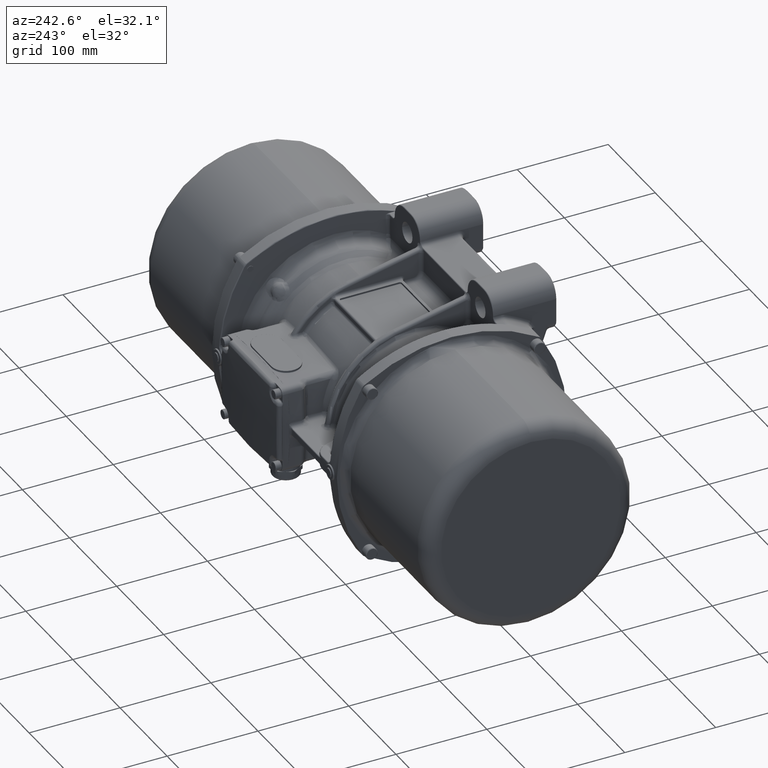
[diagram: clean part render]
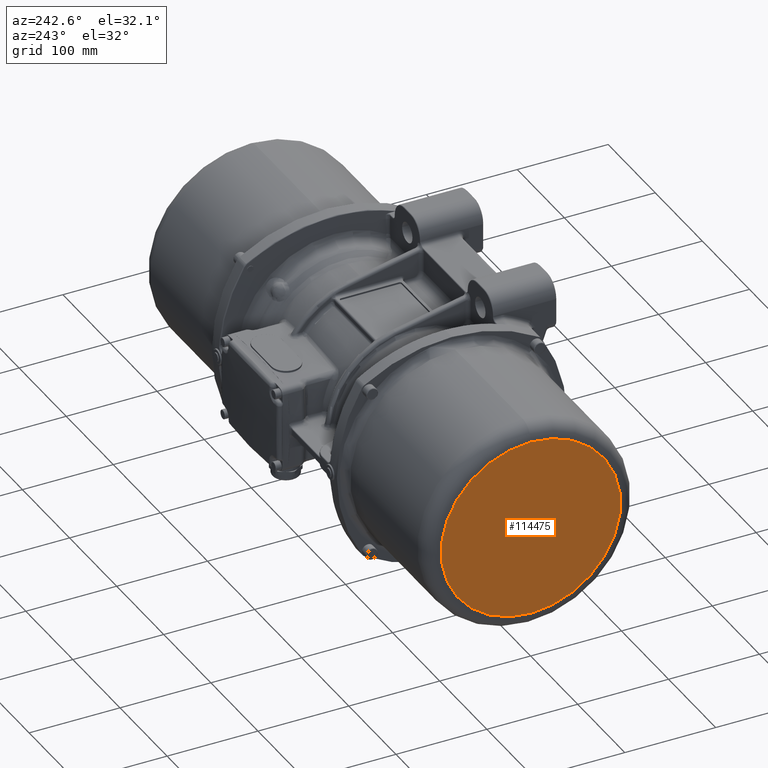
[diagram: same view with one face highlighted and labeled with its STEP entity id]
A machine part, auxiliary view. The second image highlights one B-rep face of the part: STEP entity #114475.
In plain terms, the highlighted planar face has unit normal (-1, 0, 0).
Its self-contained STEP definition (entity closure, byte-faithful):
#156 = DIRECTION ( 'NONE',  ( 0.0000000000000000000, 0.0000000000000000000, -1.000000000000000000 ) ) ;
#1192 = ORIENTED_EDGE ( 'NONE', *, *, #68252, .F. ) ;
#8926 = CARTESIAN_POINT ( 'NONE',  ( -300.5000000000000000, 0.0000000000000000000, 0.0000000000000000000 ) ) ;
#15706 = DIRECTION ( 'NONE',  ( 0.0000000000000000000, 0.0000000000000000000, 1.000000000000000000 ) ) ;
#16228 = CIRCLE ( 'NONE', #62431, 98.75000000000000000 ) ;
#16581 = DIRECTION ( 'NONE',  ( -1.000000000000000000, 0.0000000000000000000, 0.0000000000000000000 ) ) ;
#19911 = CARTESIAN_POINT ( 'NONE',  ( -300.5000000000000000, 0.0000000000000000000, 0.0000000000000000000 ) ) ;
#21304 = AXIS2_PLACEMENT_3D ( 'NONE', #19911, #69340, #50034 ) ;
#23089 = CARTESIAN_POINT ( 'NONE',  ( -300.5000000000000000, 1.314658338884683800E-014, 98.75000000000000000 ) ) ;
#26625 = CARTESIAN_POINT ( 'NONE',  ( -300.5000000000000000, -99.93500000000000200, -99.93500000000000200 ) ) ;
#35684 = EDGE_LOOP ( 'NONE', ( #106705, #1192 ) ) ;
#48721 = CARTESIAN_POINT ( 'NONE',  ( -300.5000000000000000, 0.0000000000000000000, -98.75000000000000000 ) ) ;
#50034 = DIRECTION ( 'NONE',  ( 0.0000000000000000000, 0.0000000000000000000, -1.000000000000000000 ) ) ;
#55774 = AXIS2_PLACEMENT_3D ( 'NONE', #26625, #16581, #15706 ) ;
#59680 = DIRECTION ( 'NONE',  ( 1.000000000000000000, 0.0000000000000000000, 0.0000000000000000000 ) ) ;
#61832 = VERTEX_POINT ( 'NONE', #48721 ) ;
#62431 = AXIS2_PLACEMENT_3D ( 'NONE', #8926, #59680, #156 ) ;
#62762 = CIRCLE ( 'NONE', #21304, 98.75000000000000000 ) ;
#66886 = PLANE ( 'NONE',  #55774 ) ;
#68252 = EDGE_CURVE ( 'NONE', #100773, #61832, #62762, .T. ) ;
#69340 = DIRECTION ( 'NONE',  ( 1.000000000000000000, 0.0000000000000000000, 0.0000000000000000000 ) ) ;
#71454 = FACE_OUTER_BOUND ( 'NONE', #35684, .T. ) ;
#98302 = EDGE_CURVE ( 'NONE', #61832, #100773, #16228, .T. ) ;
#100773 = VERTEX_POINT ( 'NONE', #23089 ) ;
#106705 = ORIENTED_EDGE ( 'NONE', *, *, #98302, .F. ) ;
#114475 = ADVANCED_FACE ( 'NONE', ( #71454 ), #66886, .T. ) ;